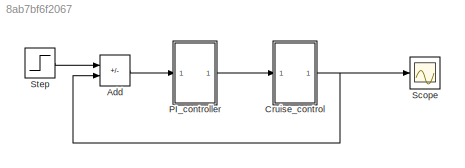
MODEL slx_8ab7bf6f2067
KIND model
CONFIG AbsTol = auto
CONFIG EnableMultiTasking = off
CONFIG FixedStep = auto
CONFIG MaxStep = auto
CONFIG MinStep = auto
CONFIG RelTol = 1e-3
CONFIG SampleTimeConstraint = Unconstrained
CONFIG SolverName = VariableStepAuto
CONFIG StartTime = 0.0
CONFIG StopTime = 120
WORKSPACE source: mxarray member
WORKSPACE b = 50
WORKSPACE m = 1000
WORKSPACE u = 500
BLOCK [Sum] Add
  IconShape = rectangular
  Inputs = +-
  Ports = [2, 1]
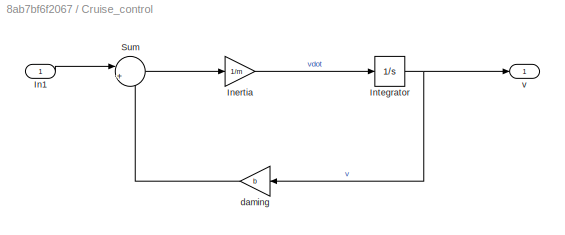
BLOCK [SubSystem] Cruise_control
  Ports = [1, 1]
  RequestExecContextInheritance = off
BLOCK [Inport] Cruise_control/In1
BLOCK [Gain] Cruise_control/Inertia
  Gain = 1/m
BLOCK [Integrator] Cruise_control/Integrator
  Ports = [1, 1]
BLOCK [Sum] Cruise_control/Sum
  Inputs = |+-
  Ports = [2, 1]
BLOCK [Gain] Cruise_control/daming
  Gain = b
  NameLocation = top
BLOCK [Outport] Cruise_control/v
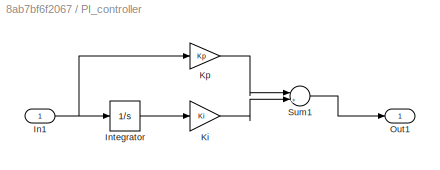
BLOCK [SubSystem] PI_controller
  Ports = [1, 1]
  RequestExecContextInheritance = off
BLOCK [Inport] PI_controller/In1
BLOCK [Integrator] PI_controller/Integrator
  Ports = [1, 1]
BLOCK [Gain] PI_controller/Ki
  Gain = Ki
BLOCK [Gain] PI_controller/Kp
  Gain = Kp
BLOCK [Outport] PI_controller/Out1
BLOCK [Sum] PI_controller/Sum1
  Inputs = |++
  NameLocation = top
  Ports = [2, 1]
BLOCK [Scope] Scope
  Floating = off
  NumInputPorts = 1
  Ports = [1]
  ScopeSpecificationString = Simulink.scopes.TimeScopeBlockCfg('CurrentConfiguration', extmgr.ConfigurationSet(extmgr.Configuration('Core','General UI',true),extmgr.Configuration('Core','Source UI',true),extmgr.Configuration('Sources','WiredSimulink',true),extmgr.Configuration('Visuals','Time Domain',true,'SerializedDisplays',{struct('MinYLimReal','-64.38827','MaxYLimReal','579.49441','YLabelReal','','MinYLimMag','0.00000','M...<+1344ch>
BLOCK [Step] Step
  After = u
  SampleTime = 0
  Time = 0
LINE Add:1 -> PI_controller:1
LINE Cruise_control/In1:1 -> Cruise_control/Sum:1
LINE Cruise_control/Inertia:1 -> Cruise_control/Integrator:1
NET Cruise_control/Integrator:1 -> Cruise_control/daming:1, Cruise_control/v:1
LINE Cruise_control/Sum:1 -> Cruise_control/Inertia:1
LINE Cruise_control/daming:1 -> Cruise_control/Sum:2
NET Cruise_control:1 -> Add:2, Scope:1
NET PI_controller/In1:1 -> PI_controller/Integrator:1, PI_controller/Kp:1
LINE PI_controller/Integrator:1 -> PI_controller/Ki:1
LINE PI_controller/Ki:1 -> PI_controller/Sum1:2
LINE PI_controller/Kp:1 -> PI_controller/Sum1:1
LINE PI_controller/Sum1:1 -> PI_controller/Out1:1
LINE PI_controller:1 -> Cruise_control:1
LINE Step:1 -> Add:1
note: NET lines group one-source signal fan-out (src -> all destinations, sorted); 1:1 wires keep LINE
